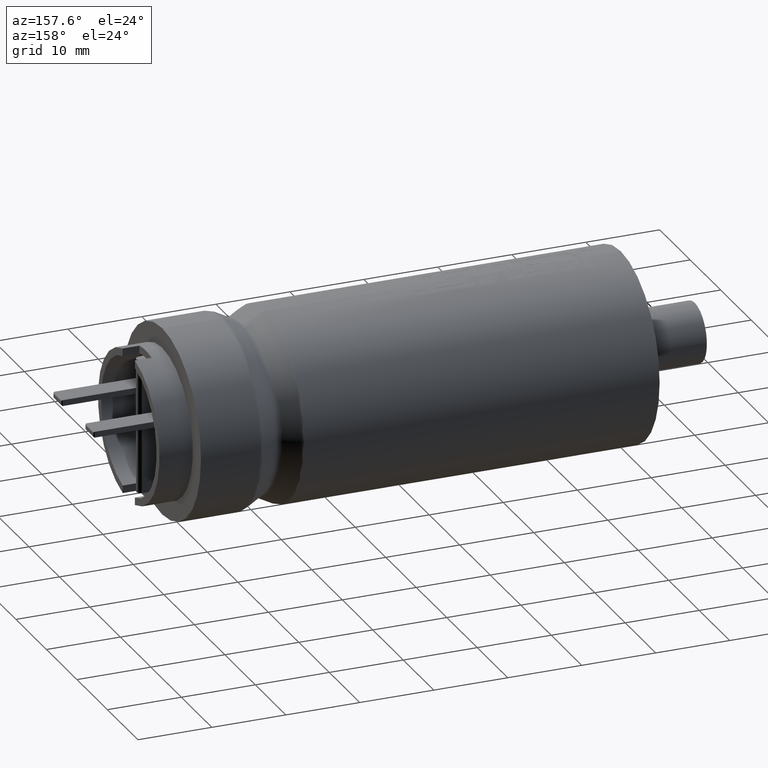
[diagram: clean part render]
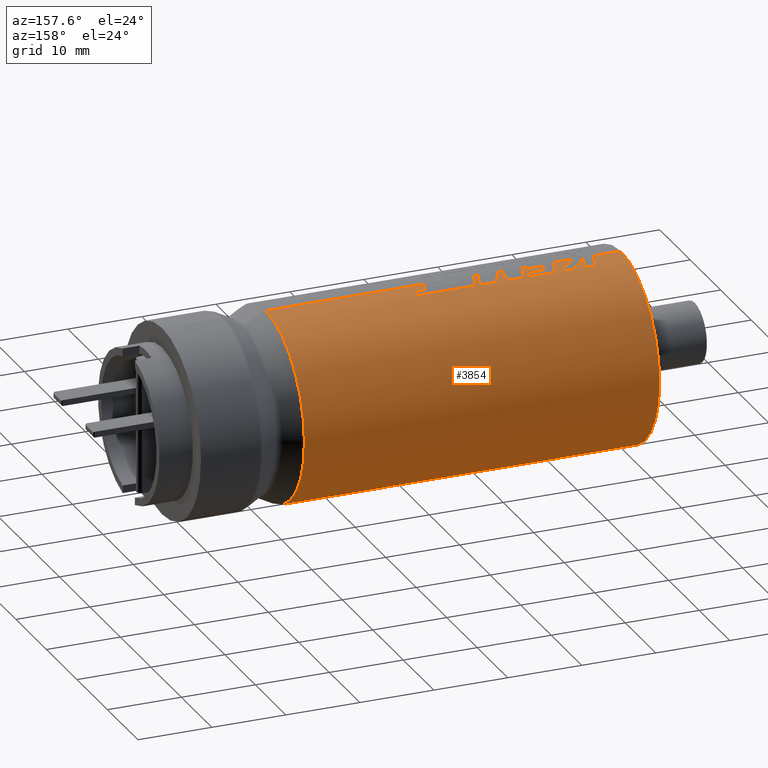
[diagram: same view with one face highlighted and labeled with its STEP entity id]
A machine part, auxiliary view. The second image highlights one B-rep face of the part: STEP entity #3854.
In plain terms, the highlighted cylindrical surface (partial cylindrical patch) has radius 12.75 mm, axis along (-1, -0, -0).
Its self-contained STEP definition (entity closure, byte-faithful):
#23 = DIRECTION ( 'NONE',  ( -1.000000000000000000, 0.0000000000000000000, 0.0000000000000000000 ) ) ;
#54 = VERTEX_POINT ( 'NONE', #2325 ) ;
#118 = CARTESIAN_POINT ( 'NONE',  ( 14.07290046809402800, 2.437918319731484200, 12.51475346406462700 ) ) ;
#146 = CARTESIAN_POINT ( 'NONE',  ( 62.00000000000000000, 0.0000000000000000000, 0.0000000000000000000 ) ) ;
#173 = VECTOR ( 'NONE', #2434, 1000.000000000000000 ) ;
#184 = VERTEX_POINT ( 'NONE', #6311 ) ;
#211 = CARTESIAN_POINT ( 'NONE',  ( 6.679526371645398100, 1.734658464568066900, 12.65175097579010300 ) ) ;
#280 = EDGE_CURVE ( 'NONE', #5605, #4098, #1242, .T. ) ;
#357 = B_SPLINE_CURVE_WITH_KNOTS ( 'NONE', 3,
 ( #1838, #5201, #1350, #5717 ),
 .UNSPECIFIED., .F., .F.,
 ( 4, 4 ),
 ( 0.0000000000000000000, 1.000000000000000000 ),
 .UNSPECIFIED. ) ;
#402 = EDGE_CURVE ( 'NONE', #2580, #5148, #5896, .T. ) ;
#408 = VECTOR ( 'NONE', #1468, 1000.000000000000000 ) ;
#437 = CARTESIAN_POINT ( 'NONE',  ( 62.00000000000000000, 1.561424668912875100E-015, -12.75000000000000000 ) ) ;
#448 = DIRECTION ( 'NONE',  ( -1.000000000000000000, 0.0000000000000000000, 0.0000000000000000000 ) ) ;
#449 = LINE ( 'NONE', #2755, #5322 ) ;
#457 = LINE ( 'NONE', #4845, #3532 ) ;
#463 = ORIENTED_EDGE ( 'NONE', *, *, #4686, .T. ) ;
#490 = CARTESIAN_POINT ( 'NONE',  ( 16.17539499039226300, 1.635177213141785900, 12.67113027607103200 ) ) ;
#507 = CARTESIAN_POINT ( 'NONE',  ( 9.140609263108109100, -1.553682354589516200E-009, 12.74999972991526100 ) ) ;
#527 = VERTEX_POINT ( 'NONE', #1660 ) ;
#529 = VERTEX_POINT ( 'NONE', #724 ) ;
#542 = CARTESIAN_POINT ( 'NONE',  ( 0.0000000000000000000, 0.0000000000000000000, 0.0000000000000000000 ) ) ;
#550 = CARTESIAN_POINT ( 'NONE',  ( 19.31692771727775000, -1.551171569053803700E-009, 12.74999972991550100 ) ) ;
#587 = CARTESIAN_POINT ( 'NONE',  ( 48.01653399380575100, 1.561424668912875100E-015, -12.75000000000000000 ) ) ;
#597 = CARTESIAN_POINT ( 'NONE',  ( 20.02219009393548500, 2.437918319731506000, 12.51475346406462400 ) ) ;
#640 = ORIENTED_EDGE ( 'NONE', *, *, #5636, .F. ) ;
#649 = CARTESIAN_POINT ( 'NONE',  ( 19.78710010901808000, 1.635321832183557200, 12.67110210376925400 ) ) ;
#650 = CARTESIAN_POINT ( 'NONE',  ( 17.81151456494097100, 2.437918319731506000, 12.51475346406462400 ) ) ;
#675 = ORIENTED_EDGE ( 'NONE', *, *, #5951, .F. ) ;
#679 = ORIENTED_EDGE ( 'NONE', *, *, #4900, .F. ) ;
#683 = B_SPLINE_CURVE_WITH_KNOTS ( 'NONE', 3,
 ( #4402, #5874, #1474, #2948 ),
 .UNSPECIFIED., .F., .F.,
 ( 4, 4 ),
 ( 0.4031892637053401400, 1.000000000000000000 ),
 .UNSPECIFIED. ) ;
#699 = AXIS2_PLACEMENT_3D ( 'NONE', #146, #5620, #1266 ) ;
#724 = CARTESIAN_POINT ( 'NONE',  ( 9.846490711676619200, 2.437918319731484200, 12.51475346406462700 ) ) ;
#781 = DIRECTION ( 'NONE',  ( -1.000000000000000000, -0.0000000000000000000, -0.0000000000000000000 ) ) ;
#816 = EDGE_CURVE ( 'NONE', #4421, #4865, #3212, .T. ) ;
#819 = EDGE_CURVE ( 'NONE', #1766, #184, #457, .T. ) ;
#824 = VERTEX_POINT ( 'NONE', #3413 ) ;
#830 = CARTESIAN_POINT ( 'NONE',  ( 12.73296293964357100, -1.876572970095895900E-010, 12.74999956448637300 ) ) ;
#903 = LINE ( 'NONE', #4319, #4639 ) ;
#911 = CARTESIAN_POINT ( 'NONE',  ( 5.456837457828321200, 1.019866211901431200, 12.72932542478114600 ) ) ;
#995 = CARTESIAN_POINT ( 'NONE',  ( 24.37119088696589800, 2.437918319731506000, 12.51475346406462400 ) ) ;
#998 = CARTESIAN_POINT ( 'NONE',  ( 13.29766046417612400, 1.490199698550932300, 12.66261445588701100 ) ) ;
#1027 = ORIENTED_EDGE ( 'NONE', *, *, #5902, .F. ) ;
#1063 = CARTESIAN_POINT ( 'NONE',  ( 27.06111308215869500, 1.476500149370398600, 12.66421917486068900 ) ) ;
#1077 = EDGE_CURVE ( 'NONE', #3182, #2580, #357, .T. ) ;
#1098 = CARTESIAN_POINT ( 'NONE',  ( 16.59489633573251100, -6.244991139491962100E-007, 12.74992729144796000 ) ) ;
#1146 = LINE ( 'NONE', #2575, #4130 ) ;
#1155 = CARTESIAN_POINT ( 'NONE',  ( 20.02219009393548500, 2.437918319731506000, 12.51475346406462400 ) ) ;
#1161 = EDGE_CURVE ( 'NONE', #2134, #5605, #449, .T. ) ;
#1185 = ORIENTED_EDGE ( 'NONE', *, *, #2248, .F. ) ;
#1190 = CARTESIAN_POINT ( 'NONE',  ( 6.699315549040949100, 0.1494306486599649700, 12.74912430252529400 ) ) ;
#1242 = B_SPLINE_CURVE_WITH_KNOTS ( 'NONE', 3,
 ( #5398, #5859, #2959, #4387 ),
 .UNSPECIFIED., .F., .F.,
 ( 4, 4 ),
 ( 0.6361692194014400000, 1.000000000000000000 ),
 .UNSPECIFIED. ) ;
#1245 = EDGE_CURVE ( 'NONE', #6247, #2179, #903, .T. ) ;
#1266 = DIRECTION ( 'NONE',  ( 0.0000000000000000000, 0.0000000000000000000, 1.000000000000000000 ) ) ;
#1277 = CARTESIAN_POINT ( 'NONE',  ( 16.08737203568159700, -2.762095016367507200E-008, 12.74992876645247200 ) ) ;
#1288 = EDGE_CURVE ( 'NONE', #4346, #824, #5769, .T. ) ;
#1292 = CARTESIAN_POINT ( 'NONE',  ( 13.83780507254560300, 1.635107669799382500, 12.67114382336055200 ) ) ;
#1332 = CARTESIAN_POINT ( 'NONE',  ( 13.60281965886215300, 0.8175901372076838100, 12.74962336704926000 ) ) ;
#1350 = CARTESIAN_POINT ( 'NONE',  ( 28.62759750893705400, 2.119466501975038500, 12.57678900656968000 ) ) ;
#1389 = B_SPLINE_CURVE_WITH_KNOTS ( 'NONE', 3,
 ( #5375, #2454, #1512, #1488 ),
 .UNSPECIFIED., .F., .F.,
 ( 4, 4 ),
 ( 0.0000000000000000000, 0.4866745225253160700 ),
 .UNSPECIFIED. ) ;
#1393 = ORIENTED_EDGE ( 'NONE', *, *, #4230, .F. ) ;
#1407 = EDGE_LOOP ( 'NONE', ( #2418, #463, #1728, #675, #5312, #5109, #1393, #3876, #4630, #640, #5761, #679, #1781, #2534, #1855, #2033, #1027, #4317, #4559, #1185, #3948, #3432, #4471, #3307, #3619, #3349, #1911, #1572, #1478, #3125, #2860, #3723, #4449, #1435, #2186 ) ) ;
#1435 = ORIENTED_EDGE ( 'NONE', *, *, #280, .F. ) ;
#1466 = B_SPLINE_CURVE_WITH_KNOTS ( 'NONE', 3,
 ( #998, #4892, #1958, #5381 ),
 .UNSPECIFIED., .F., .F.,
 ( 4, 4 ),
 ( 0.0000000000000000000, 1.000000000000000000 ),
 .UNSPECIFIED. ) ;
#1468 = DIRECTION ( 'NONE',  ( -1.000000000000000000, 0.0000000000000000000, 0.0000000000000000000 ) ) ;
#1474 = CARTESIAN_POINT ( 'NONE',  ( 12.83885611180578200, 0.3707358529469381200, 12.74595686035629400 ) ) ;
#1478 = ORIENTED_EDGE ( 'NONE', *, *, #3167, .F. ) ;
#1484 = DIRECTION ( 'NONE',  ( -1.000000000000000000, 0.0000000000000000000, 0.0000000000000000000 ) ) ;
#1488 = CARTESIAN_POINT ( 'NONE',  ( 9.140609263108109100, -1.553682354589516200E-009, 12.74999972991526100 ) ) ;
#1489 = VERTEX_POINT ( 'NONE', #2257 ) ;
#1512 = CARTESIAN_POINT ( 'NONE',  ( 9.375902951541398500, 0.8176731083877345500, 12.74998666589295500 ) ) ;
#1520 = VECTOR ( 'NONE', #1484, 1000.000000000000000 ) ;
#1549 = VERTEX_POINT ( 'NONE', #1190 ) ;
#1567 = AXIS2_PLACEMENT_3D ( 'NONE', #5842, #448, #4830 ) ;
#1572 = ORIENTED_EDGE ( 'NONE', *, *, #1245, .F. ) ;
#1636 = CARTESIAN_POINT ( 'NONE',  ( 17.81151456494097100, 2.437918319731506000, 12.51475346406462400 ) ) ;
#1660 = CARTESIAN_POINT ( 'NONE',  ( 20.62942873935139000, 2.437918319731506000, 12.51475346406462400 ) ) ;
#1678 = CARTESIAN_POINT ( 'NONE',  ( 19.92385309641599300, -1.552428100944127400E-009, 12.74999972991538000 ) ) ;
#1682 = CARTESIAN_POINT ( 'NONE',  ( 3.727459370752924900, -1.549940251119973200E-009, 12.74999972991562000 ) ) ;
#1692 = CARTESIAN_POINT ( 'NONE',  ( 6.740609981095938800, 0.04981091445020809800, 12.74999894832449600 ) ) ;
#1704 = LINE ( 'NONE', #3360, #1861 ) ;
#1728 = ORIENTED_EDGE ( 'NONE', *, *, #1780, .T. ) ;
#1730 = CARTESIAN_POINT ( 'NONE',  ( 20.15904484968513100, 0.8176731083597192900, 12.74998666589865900 ) ) ;
#1766 = VERTEX_POINT ( 'NONE', #4231 ) ;
#1780 = EDGE_CURVE ( 'NONE', #2531, #1489, #3833, .T. ) ;
#1781 = ORIENTED_EDGE ( 'NONE', *, *, #2230, .F. ) ;
#1793 = CARTESIAN_POINT ( 'NONE',  ( 62.00000000000000000, 0.0000000000000000000, 12.75000000000000000 ) ) ;
#1838 = CARTESIAN_POINT ( 'NONE',  ( 28.44112207548486600, 1.476391329599552100, 12.66423186150203300 ) ) ;
#1840 = CARTESIAN_POINT ( 'NONE',  ( 13.36781100607982100, -3.224155166252699100E-007, 12.74985935759671700 ) ) ;
#1851 = CARTESIAN_POINT ( 'NONE',  ( 16.13138642116097900, 0.8176398009335670300, 12.74974920466455300 ) ) ;
#1855 = ORIENTED_EDGE ( 'NONE', *, *, #3314, .F. ) ;
#1861 = VECTOR ( 'NONE', #5323, 1000.000000000000000 ) ;
#1890 = EDGE_CURVE ( 'NONE', #3979, #4421, #683, .T. ) ;
#1911 = ORIENTED_EDGE ( 'NONE', *, *, #5096, .F. ) ;
#1932 = VERTEX_POINT ( 'NONE', #5986 ) ;
#1938 = VERTEX_POINT ( 'NONE', #118 ) ;
#1940 = CARTESIAN_POINT ( 'NONE',  ( 9.052315479556927600, 2.437918319731483800, 12.51475346406462700 ) ) ;
#1958 = CARTESIAN_POINT ( 'NONE',  ( 13.47932213636360100, 2.124015274580136400, 12.57590288954803100 ) ) ;
#1998 = CARTESIAN_POINT ( 'NONE',  ( 9.052315479556927600, 2.437918319731484200, 12.51475346406462700 ) ) ;
#2032 = VERTEX_POINT ( 'NONE', #1682 ) ;
#2033 = ORIENTED_EDGE ( 'NONE', *, *, #3358, .F. ) ;
#2073 = DIRECTION ( 'NONE',  ( 1.000000000000000000, 0.0000000000000000000, 0.0000000000000000000 ) ) ;
#2101 = CARTESIAN_POINT ( 'NONE',  ( 3.727459370752924900, -1.549940251119973200E-009, 12.74999972991562000 ) ) ;
#2134 = VERTEX_POINT ( 'NONE', #2288 ) ;
#2137 = CARTESIAN_POINT ( 'NONE',  ( 7.393574057302676500, 2.437918319731483800, 12.51475346406462700 ) ) ;
#2142 = EDGE_CURVE ( 'NONE', #2134, #3506, #2475, .T. ) ;
#2143 = CARTESIAN_POINT ( 'NONE',  ( 10.81934669697487900, 0.8681339641448749800, 12.72424857561145300 ) ) ;
#2179 = VERTEX_POINT ( 'NONE', #550 ) ;
#2186 = ORIENTED_EDGE ( 'NONE', *, *, #1161, .F. ) ;
#2204 = CYLINDRICAL_SURFACE ( 'NONE', #699, 12.75000000000000000 ) ;
#2230 = EDGE_CURVE ( 'NONE', #529, #2932, #1389, .T. ) ;
#2248 = EDGE_CURVE ( 'NONE', #2803, #3979, #2636, .T. ) ;
#2257 = CARTESIAN_POINT ( 'NONE',  ( 0.0000000000000000000, 0.0000000000000000000, 12.75000000000000000 ) ) ;
#2288 = CARTESIAN_POINT ( 'NONE',  ( 48.01653399380575100, 0.0000000000000000000, 12.75000000000000000 ) ) ;
#2300 = LINE ( 'NONE', #995, #4748 ) ;
#2325 = CARTESIAN_POINT ( 'NONE',  ( 13.57015309563818000, 2.437918319731483800, 12.51475346406462700 ) ) ;
#2414 = B_SPLINE_CURVE_WITH_KNOTS ( 'NONE', 3,
 ( #3107, #4071, #3087, #2101 ),
 .UNSPECIFIED., .F., .F.,
 ( 4, 4 ),
 ( 0.0000000000000000000, 0.4866745225231022800 ),
 .UNSPECIFIED. ) ;
#2418 = ORIENTED_EDGE ( 'NONE', *, *, #2142, .T. ) ;
#2434 = DIRECTION ( 'NONE',  ( -1.000000000000000000, 0.0000000000000000000, 0.0000000000000000000 ) ) ;
#2454 = CARTESIAN_POINT ( 'NONE',  ( 9.611194367577285300, 1.635321833339001600, 12.67110210354416600 ) ) ;
#2458 = CARTESIAN_POINT ( 'NONE',  ( 27.98111907770947600, 1.476427602874671000, 12.66422763277742700 ) ) ;
#2460 = CARTESIAN_POINT ( 'NONE',  ( 28.72083535933061400, 2.437918319731506000, 12.51475346406462400 ) ) ;
#2475 = CIRCLE ( 'NONE', #1567, 12.75000000000000000 ) ;
#2531 = VERTEX_POINT ( 'NONE', #3057 ) ;
#2533 = CARTESIAN_POINT ( 'NONE',  ( 19.55201504850237300, 0.8176731083310123700, 12.74998666590449900 ) ) ;
#2534 = ORIENTED_EDGE ( 'NONE', *, *, #5437, .F. ) ;
#2540 = B_SPLINE_CURVE_WITH_KNOTS ( 'NONE', 3,
 ( #650, #5483, #2582, #1098 ),
 .UNSPECIFIED., .F., .F.,
 ( 4, 4 ),
 ( 0.0000000000000000000, 0.6812329440389455200 ),
 .UNSPECIFIED. ) ;
#2543 = VECTOR ( 'NONE', #2778, 1000.000000000000000 ) ;
#2552 = LINE ( 'NONE', #4120, #6276 ) ;
#2575 = CARTESIAN_POINT ( 'NONE',  ( 11.00121272050092000, 1.490199698550932300, 12.66261445588701100 ) ) ;
#2576 = CARTESIAN_POINT ( 'NONE',  ( 20.62942873935139000, 2.437918319731506000, 12.51475346406462400 ) ) ;
#2580 = VERTEX_POINT ( 'NONE', #2460 ) ;
#2582 = CARTESIAN_POINT ( 'NONE',  ( 17.00042573458221500, 0.8176435541756033000, 12.74974409395992400 ) ) ;
#2626 = LINE ( 'NONE', #1793, #5359 ) ;
#2636 = LINE ( 'NONE', #3973, #5736 ) ;
#2670 = CARTESIAN_POINT ( 'NONE',  ( 10.72841357314344200, 0.5559277335405952100, 12.73787440490289800 ) ) ;
#2681 = CARTESIAN_POINT ( 'NONE',  ( 20.39423433139084100, 1.635321832768161300, 12.67110210365537000 ) ) ;
#2737 = CARTESIAN_POINT ( 'NONE',  ( 16.21941915476517300, 2.437918319731506000, 12.51475346406462400 ) ) ;
#2754 = CARTESIAN_POINT ( 'NONE',  ( 6.761256911390858300, 1.633021557388703000E-008, 12.74999858502565100 ) ) ;
#2755 = CARTESIAN_POINT ( 'NONE',  ( 62.00000000000000000, 0.0000000000000000000, 12.75000000000000000 ) ) ;
#2756 = CARTESIAN_POINT ( 'NONE',  ( 14.07290046809402800, 2.437918319731484200, 12.51475346406462700 ) ) ;
#2778 = DIRECTION ( 'NONE',  ( -1.000000000000000000, 0.0000000000000000000, 0.0000000000000000000 ) ) ;
#2803 = VERTEX_POINT ( 'NONE', #6146 ) ;
#2849 = B_SPLINE_CURVE_WITH_KNOTS ( 'NONE', 3,
 ( #2756, #1292, #1332, #1840 ),
 .UNSPECIFIED., .F., .F.,
 ( 4, 4 ),
 ( 0.0000000000000000000, 0.6010295566042962400 ),
 .UNSPECIFIED. ) ;
#2860 = ORIENTED_EDGE ( 'NONE', *, *, #402, .F. ) ;
#2880 = B_SPLINE_CURVE_WITH_KNOTS ( 'NONE', 3,
 ( #4079, #2143, #3606, #5547 ),
 .UNSPECIFIED., .F., .F.,
 ( 4, 4 ),
 ( 0.0000000000000000000, 1.000000000000000000 ),
 .UNSPECIFIED. ) ;
#2904 = DIRECTION ( 'NONE',  ( -1.000000000000000000, -0.0000000000000000000, -0.0000000000000000000 ) ) ;
#2915 = CARTESIAN_POINT ( 'NONE',  ( 5.867584669562345000, 2.437918319731484200, 12.51475346406462700 ) ) ;
#2932 = VERTEX_POINT ( 'NONE', #507 ) ;
#2937 = EDGE_CURVE ( 'NONE', #5148, #527, #2300, .T. ) ;
#2946 = CARTESIAN_POINT ( 'NONE',  ( 16.21941915476517300, 2.437918319731506000, 12.51475346406462400 ) ) ;
#2948 = CARTESIAN_POINT ( 'NONE',  ( 12.89180276640823700, 0.5559277335405952100, 12.73787440490289800 ) ) ;
#2959 = CARTESIAN_POINT ( 'NONE',  ( 26.91930149616605300, 0.9864387720156515500, 12.72135461186428200 ) ) ;
#2971 = LINE ( 'NONE', #437, #5760 ) ;
#3057 = CARTESIAN_POINT ( 'NONE',  ( 0.0000000000000000000, 1.561424668912875100E-015, -12.75000000000000000 ) ) ;
#3087 = CARTESIAN_POINT ( 'NONE',  ( 3.962444766813400000, 0.8176731083029957800, 12.74998666591019600 ) ) ;
#3107 = CARTESIAN_POINT ( 'NONE',  ( 4.432415941777498400, 2.437918319731506000, 12.51475346406462400 ) ) ;
#3114 = CARTESIAN_POINT ( 'NONE',  ( 6.761256911390858300, 1.633021557388703000E-008, 12.74999858502565100 ) ) ;
#3125 = ORIENTED_EDGE ( 'NONE', *, *, #2937, .F. ) ;
#3140 = CARTESIAN_POINT ( 'NONE',  ( 16.59489633573251100, -6.244991139491962100E-007, 12.74992729144796000 ) ) ;
#3167 = EDGE_CURVE ( 'NONE', #527, #6247, #6015, .T. ) ;
#3182 = VERTEX_POINT ( 'NONE', #3675 ) ;
#3212 = LINE ( 'NONE', #4884, #1520 ) ;
#3235 = VERTEX_POINT ( 'NONE', #4398 ) ;
#3243 = DIRECTION ( 'NONE',  ( -1.000000000000000000, -0.0000000000000000000, -0.0000000000000000000 ) ) ;
#3307 = ORIENTED_EDGE ( 'NONE', *, *, #6032, .F. ) ;
#3314 = EDGE_CURVE ( 'NONE', #1932, #54, #1466, .T. ) ;
#3349 = ORIENTED_EDGE ( 'NONE', *, *, #4327, .F. ) ;
#3358 = EDGE_CURVE ( 'NONE', #6212, #1932, #1146, .T. ) ;
#3360 = CARTESIAN_POINT ( 'NONE',  ( 62.00000000000000000, 0.0000000000000000000, 12.75000000000000000 ) ) ;
#3372 = EDGE_CURVE ( 'NONE', #5904, #3426, #2540, .T. ) ;
#3406 = DIRECTION ( 'NONE',  ( -1.000000000000000000, -0.0000000000000000000, -0.0000000000000000000 ) ) ;
#3409 = B_SPLINE_CURVE_WITH_KNOTS ( 'NONE', 3,
 ( #3810, #911, #5317, #2915 ),
 .UNSPECIFIED., .F., .F.,
 ( 4, 4 ),
 ( 0.0000000000000000000, 1.000000000000000000 ),
 .UNSPECIFIED. ) ;
#3413 = CARTESIAN_POINT ( 'NONE',  ( 7.393574057302676500, 2.437918319731483800, 12.51475346406462700 ) ) ;
#3419 = CARTESIAN_POINT ( 'NONE',  ( 16.08737203568159700, -2.762095016367507200E-008, 12.74992876645247200 ) ) ;
#3426 = VERTEX_POINT ( 'NONE', #3140 ) ;
#3432 = ORIENTED_EDGE ( 'NONE', *, *, #6090, .F. ) ;
#3449 = DIRECTION ( 'NONE',  ( -1.000000000000000000, 0.0000000000000000000, 0.0000000000000000000 ) ) ;
#3506 = VERTEX_POINT ( 'NONE', #587 ) ;
#3523 = LINE ( 'NONE', #597, #6091 ) ;
#3529 = DIRECTION ( 'NONE',  ( -1.000000000000000000, 0.0000000000000000000, 0.0000000000000000000 ) ) ;
#3532 = VECTOR ( 'NONE', #4412, 1000.000000000000000 ) ;
#3606 = CARTESIAN_POINT ( 'NONE',  ( 10.91027959666947400, 1.179838094785543100, 12.69913935917489000 ) ) ;
#3619 = ORIENTED_EDGE ( 'NONE', *, *, #3372, .F. ) ;
#3626 = DIRECTION ( 'NONE',  ( -1.000000000000000000, -0.0000000000000000000, -0.0000000000000000000 ) ) ;
#3675 = CARTESIAN_POINT ( 'NONE',  ( 28.44112207548486600, 1.476391329599552100, 12.66423186150203300 ) ) ;
#3682 = FACE_OUTER_BOUND ( 'NONE', #1407, .T. ) ;
#3688 = EDGE_CURVE ( 'NONE', #184, #2032, #2414, .T. ) ;
#3715 = VERTEX_POINT ( 'NONE', #5009 ) ;
#3723 = ORIENTED_EDGE ( 'NONE', *, *, #1077, .F. ) ;
#3810 = CARTESIAN_POINT ( 'NONE',  ( 5.251457067200815800, 0.3035828728134847800, 12.74638526953168400 ) ) ;
#3812 = EDGE_CURVE ( 'NONE', #824, #3715, #4491, .T. ) ;
#3833 = CIRCLE ( 'NONE', #5004, 12.75000000000000000 ) ;
#3854 = ADVANCED_FACE ( 'NONE', ( #3682 ), #2204, .T. ) ;
#3876 = ORIENTED_EDGE ( 'NONE', *, *, #3812, .F. ) ;
#3896 = DIRECTION ( 'NONE',  ( 0.0000000000000000000, 0.0000000000000000000, -1.000000000000000000 ) ) ;
#3948 = ORIENTED_EDGE ( 'NONE', *, *, #4564, .F. ) ;
#3958 = CARTESIAN_POINT ( 'NONE',  ( 28.44112207548486600, 1.476391329599552100, 12.66423186150203300 ) ) ;
#3973 = CARTESIAN_POINT ( 'NONE',  ( 62.00000000000000000, 0.0000000000000000000, 12.75000000000000000 ) ) ;
#3979 = VERTEX_POINT ( 'NONE', #830 ) ;
#3980 = B_SPLINE_CURVE_WITH_KNOTS ( 'NONE', 3,
 ( #3419, #1851, #490, #5748 ),
 .UNSPECIFIED., .F., .F.,
 ( 4, 4 ),
 ( 0.3187649380993694500, 1.000000000000000000 ),
 .UNSPECIFIED. ) ;
#3991 = CARTESIAN_POINT ( 'NONE',  ( 26.63576964774154400, 3.964541715865705500E-007, 12.74987071683159300 ) ) ;
#4003 = CARTESIAN_POINT ( 'NONE',  ( 19.31692771727775000, -1.551171569053803700E-009, 12.74999972991550100 ) ) ;
#4071 = CARTESIAN_POINT ( 'NONE',  ( 4.197427892999292500, 1.635321831613036000, 12.67110210388039200 ) ) ;
#4079 = CARTESIAN_POINT ( 'NONE',  ( 10.72841357314344200, 0.5559277335405952100, 12.73787440490289800 ) ) ;
#4098 = VERTEX_POINT ( 'NONE', #5672 ) ;
#4120 = CARTESIAN_POINT ( 'NONE',  ( 62.00000000000000000, 0.0000000000000000000, 12.75000000000000000 ) ) ;
#4130 = VECTOR ( 'NONE', #2073, 1000.000000000000000 ) ;
#4159 = CARTESIAN_POINT ( 'NONE',  ( 12.89180276640823700, 0.5559277335405952100, 12.73787440490289800 ) ) ;
#4198 = EDGE_CURVE ( 'NONE', #6069, #5066, #3980, .T. ) ;
#4230 = EDGE_CURVE ( 'NONE', #3715, #1766, #3409, .T. ) ;
#4231 = CARTESIAN_POINT ( 'NONE',  ( 5.867584669562345000, 2.437918319731484200, 12.51475346406462700 ) ) ;
#4310 = EDGE_CURVE ( 'NONE', #4098, #3182, #5762, .T. ) ;
#4317 = ORIENTED_EDGE ( 'NONE', *, *, #816, .F. ) ;
#4319 = CARTESIAN_POINT ( 'NONE',  ( 62.00000000000000000, 0.0000000000000000000, 12.75000000000000000 ) ) ;
#4327 = EDGE_CURVE ( 'NONE', #3235, #5904, #3523, .T. ) ;
#4346 = VERTEX_POINT ( 'NONE', #1998 ) ;
#4378 = DIRECTION ( 'NONE',  ( 1.000000000000000000, 0.0000000000000000000, 0.0000000000000000000 ) ) ;
#4382 = DIRECTION ( 'NONE',  ( -1.000000000000000000, -0.0000000000000000000, -0.0000000000000000000 ) ) ;
#4387 = CARTESIAN_POINT ( 'NONE',  ( 27.06111308215869500, 1.476500149370398600, 12.66421917486068900 ) ) ;
#4398 = CARTESIAN_POINT ( 'NONE',  ( 20.02219009393548500, 2.437918319731506000, 12.51475346406462400 ) ) ;
#4402 = CARTESIAN_POINT ( 'NONE',  ( 12.73296293964357100, -1.876572970095895900E-010, 12.74999956448637300 ) ) ;
#4412 = DIRECTION ( 'NONE',  ( -1.000000000000000000, 0.0000000000000000000, 0.0000000000000000000 ) ) ;
#4421 = VERTEX_POINT ( 'NONE', #4159 ) ;
#4449 = ORIENTED_EDGE ( 'NONE', *, *, #4310, .F. ) ;
#4471 = ORIENTED_EDGE ( 'NONE', *, *, #4198, .F. ) ;
#4491 = B_SPLINE_CURVE_WITH_KNOTS ( 'NONE', 3,
 ( #2137, #211, #5558, #4518 ),
 .UNSPECIFIED., .F., .F.,
 ( 4, 4 ),
 ( 0.0000000000000000000, 1.000000000000000000 ),
 .UNSPECIFIED. ) ;
#4518 = CARTESIAN_POINT ( 'NONE',  ( 5.251457067200815800, 0.3035828728134847800, 12.74638526953168400 ) ) ;
#4523 = CARTESIAN_POINT ( 'NONE',  ( 9.052315479556927600, 2.437918319731484200, 12.51475346406462700 ) ) ;
#4559 = ORIENTED_EDGE ( 'NONE', *, *, #1890, .F. ) ;
#4564 = EDGE_CURVE ( 'NONE', #1938, #2803, #2849, .T. ) ;
#4630 = ORIENTED_EDGE ( 'NONE', *, *, #1288, .F. ) ;
#4639 = VECTOR ( 'NONE', #4382, 1000.000000000000000 ) ;
#4671 = VECTOR ( 'NONE', #3449, 1000.000000000000000 ) ;
#4686 = EDGE_CURVE ( 'NONE', #3506, #2531, #2971, .T. ) ;
#4748 = VECTOR ( 'NONE', #23, 1000.000000000000000 ) ;
#4830 = DIRECTION ( 'NONE',  ( 0.0000000000000000000, 0.0000000000000000000, 1.000000000000000000 ) ) ;
#4845 = CARTESIAN_POINT ( 'NONE',  ( 5.867584669562352100, 2.437918319731506000, 12.51475346406462400 ) ) ;
#4865 = VERTEX_POINT ( 'NONE', #2670 ) ;
#4884 = CARTESIAN_POINT ( 'NONE',  ( 12.89180276640823700, 0.5559277335405952100, 12.73787440490289800 ) ) ;
#4892 = CARTESIAN_POINT ( 'NONE',  ( 13.38849142345070200, 1.807811487604082700, 12.62523631459146000 ) ) ;
#4900 = EDGE_CURVE ( 'NONE', #2932, #5741, #1704, .T. ) ;
#4904 = LINE ( 'NONE', #5747, #173 ) ;
#4905 = LINE ( 'NONE', #2737, #2543 ) ;
#5004 = AXIS2_PLACEMENT_3D ( 'NONE', #542, #4378, #3896 ) ;
#5009 = CARTESIAN_POINT ( 'NONE',  ( 5.251457067200815800, 0.3035828728134847800, 12.74638526953168400 ) ) ;
#5066 = VERTEX_POINT ( 'NONE', #2946 ) ;
#5096 = EDGE_CURVE ( 'NONE', #2179, #3235, #6272, .T. ) ;
#5109 = ORIENTED_EDGE ( 'NONE', *, *, #819, .F. ) ;
#5119 = CARTESIAN_POINT ( 'NONE',  ( 6.719962853702262400, 0.09962223814181153700, 12.74970809972703200 ) ) ;
#5148 = VERTEX_POINT ( 'NONE', #5981 ) ;
#5201 = CARTESIAN_POINT ( 'NONE',  ( 28.53435992587842300, 1.798646791392308500, 12.62666344243721500 ) ) ;
#5312 = ORIENTED_EDGE ( 'NONE', *, *, #3688, .F. ) ;
#5317 = CARTESIAN_POINT ( 'NONE',  ( 5.662204278934831700, 1.734651533929079300, 12.65175232590313400 ) ) ;
#5322 = VECTOR ( 'NONE', #3406, 1000.000000000000000 ) ;
#5323 = DIRECTION ( 'NONE',  ( -1.000000000000000000, -0.0000000000000000000, -0.0000000000000000000 ) ) ;
#5329 = CARTESIAN_POINT ( 'NONE',  ( 19.92385309641599300, -1.552428100944127400E-009, 12.74999972991538000 ) ) ;
#5336 = B_SPLINE_CURVE_WITH_KNOTS ( 'NONE', 3,
 ( #5928, #5473, #5543, #4523 ),
 .UNSPECIFIED., .F., .F.,
 ( 4, 4 ),
 ( 0.0000000000000000000, 1.000000000000000000 ),
 .UNSPECIFIED. ) ;
#5359 = VECTOR ( 'NONE', #781, 1000.000000000000000 ) ;
#5375 = CARTESIAN_POINT ( 'NONE',  ( 9.846490711676619200, 2.437918319731484200, 12.51475346406462700 ) ) ;
#5381 = CARTESIAN_POINT ( 'NONE',  ( 13.57015309563818000, 2.437918319731483800, 12.51475346406462700 ) ) ;
#5398 = CARTESIAN_POINT ( 'NONE',  ( 26.63576964774154400, 3.964541715865705500E-007, 12.74987071683159300 ) ) ;
#5437 = EDGE_CURVE ( 'NONE', #54, #529, #4904, .T. ) ;
#5473 = CARTESIAN_POINT ( 'NONE',  ( 7.483661108206180600, 0.9172530891324753900, 12.74012476635222800 ) ) ;
#5483 = CARTESIAN_POINT ( 'NONE',  ( 17.40591109652083200, 1.635204478421663700, 12.67112496469790500 ) ) ;
#5543 = CARTESIAN_POINT ( 'NONE',  ( 8.267969920391696100, 1.684210981197911800, 12.66157832430684100 ) ) ;
#5547 = CARTESIAN_POINT ( 'NONE',  ( 11.00121272050092000, 1.490199698550932300, 12.66261445588701100 ) ) ;
#5558 = CARTESIAN_POINT ( 'NONE',  ( 5.965504752858094200, 1.019859152985355800, 12.72932559290457800 ) ) ;
#5602 = CARTESIAN_POINT ( 'NONE',  ( 6.699315549040949100, 0.1494306486599649700, 12.74912430252529400 ) ) ;
#5605 = VERTEX_POINT ( 'NONE', #3991 ) ;
#5620 = DIRECTION ( 'NONE',  ( -1.000000000000000000, -0.0000000000000000000, -0.0000000000000000000 ) ) ;
#5636 = EDGE_CURVE ( 'NONE', #1549, #4346, #5336, .T. ) ;
#5672 = CARTESIAN_POINT ( 'NONE',  ( 27.06111308215869500, 1.476500149370398600, 12.66421917486068900 ) ) ;
#5683 = B_SPLINE_CURVE_WITH_KNOTS ( 'NONE', 3,
 ( #3114, #1692, #5119, #5602 ),
 .UNSPECIFIED., .F., .F.,
 ( 4, 4 ),
 ( 0.9454003612039509900, 1.000000000000000000 ),
 .UNSPECIFIED. ) ;
#5700 = CARTESIAN_POINT ( 'NONE',  ( 11.00121272050092000, 1.490199698550932300, 12.66261445588701100 ) ) ;
#5717 = CARTESIAN_POINT ( 'NONE',  ( 28.72083535933061400, 2.437918319731506000, 12.51475346406462400 ) ) ;
#5736 = VECTOR ( 'NONE', #3243, 1000.000000000000000 ) ;
#5741 = VERTEX_POINT ( 'NONE', #2754 ) ;
#5747 = CARTESIAN_POINT ( 'NONE',  ( 13.57015309563818000, 2.437918319731483800, 12.51475346406462700 ) ) ;
#5748 = CARTESIAN_POINT ( 'NONE',  ( 16.21941915476517300, 2.437918319731506000, 12.51475346406462400 ) ) ;
#5760 = VECTOR ( 'NONE', #2904, 1000.000000000000000 ) ;
#5761 = ORIENTED_EDGE ( 'NONE', *, *, #5991, .F. ) ;
#5762 = B_SPLINE_CURVE_WITH_KNOTS ( 'NONE', 3,
 ( #1063, #5841, #2458, #3958 ),
 .UNSPECIFIED., .F., .F.,
 ( 4, 4 ),
 ( 0.0000000000000000000, 1.000000000000000000 ),
 .UNSPECIFIED. ) ;
#5769 = LINE ( 'NONE', #1940, #4671 ) ;
#5797 = CARTESIAN_POINT ( 'NONE',  ( 28.72083535933061400, 2.437918319731506000, 12.51475346406462400 ) ) ;
#5841 = CARTESIAN_POINT ( 'NONE',  ( 27.52111607993408500, 1.476463876131619600, 12.66422340389698000 ) ) ;
#5842 = CARTESIAN_POINT ( 'NONE',  ( 48.01653399380575100, 0.0000000000000000000, 0.0000000000000000000 ) ) ;
#5859 = CARTESIAN_POINT ( 'NONE',  ( 26.77752954734529200, 0.4932018096392470900, 12.74981550756779000 ) ) ;
#5874 = CARTESIAN_POINT ( 'NONE',  ( 12.78590953343068300, 0.1853679510772889000, 12.74999885005899500 ) ) ;
#5896 = LINE ( 'NONE', #5797, #408 ) ;
#5902 = EDGE_CURVE ( 'NONE', #4865, #6212, #2880, .T. ) ;
#5904 = VERTEX_POINT ( 'NONE', #1636 ) ;
#5928 = CARTESIAN_POINT ( 'NONE',  ( 6.699315549040949100, 0.1494306486599649700, 12.74912430252529400 ) ) ;
#5951 = EDGE_CURVE ( 'NONE', #2032, #1489, #2552, .T. ) ;
#5981 = CARTESIAN_POINT ( 'NONE',  ( 24.37119088696589800, 2.437918319731506000, 12.51475346406462400 ) ) ;
#5986 = CARTESIAN_POINT ( 'NONE',  ( 13.29766046417612400, 1.490199698550932300, 12.66261445588701100 ) ) ;
#5991 = EDGE_CURVE ( 'NONE', #5741, #1549, #5683, .T. ) ;
#6015 = B_SPLINE_CURVE_WITH_KNOTS ( 'NONE', 3,
 ( #2576, #2681, #1730, #1678 ),
 .UNSPECIFIED., .F., .F.,
 ( 4, 4 ),
 ( 0.0000000000000000000, 0.4866745225245833800 ),
 .UNSPECIFIED. ) ;
#6032 = EDGE_CURVE ( 'NONE', #3426, #6069, #2626, .T. ) ;
#6069 = VERTEX_POINT ( 'NONE', #1277 ) ;
#6090 = EDGE_CURVE ( 'NONE', #5066, #1938, #4905, .T. ) ;
#6091 = VECTOR ( 'NONE', #3529, 1000.000000000000000 ) ;
#6146 = CARTESIAN_POINT ( 'NONE',  ( 13.36781100607982100, -3.224155166252699100E-007, 12.74985935759671700 ) ) ;
#6212 = VERTEX_POINT ( 'NONE', #5700 ) ;
#6247 = VERTEX_POINT ( 'NONE', #5329 ) ;
#6272 = B_SPLINE_CURVE_WITH_KNOTS ( 'NONE', 3,
 ( #4003, #2533, #649, #1155 ),
 .UNSPECIFIED., .F., .F.,
 ( 4, 4 ),
 ( 0.5133254774761665300, 1.000000000000000000 ),
 .UNSPECIFIED. ) ;
#6276 = VECTOR ( 'NONE', #3626, 1000.000000000000000 ) ;
#6311 = CARTESIAN_POINT ( 'NONE',  ( 4.432415941777498400, 2.437918319731506000, 12.51475346406462400 ) ) ;